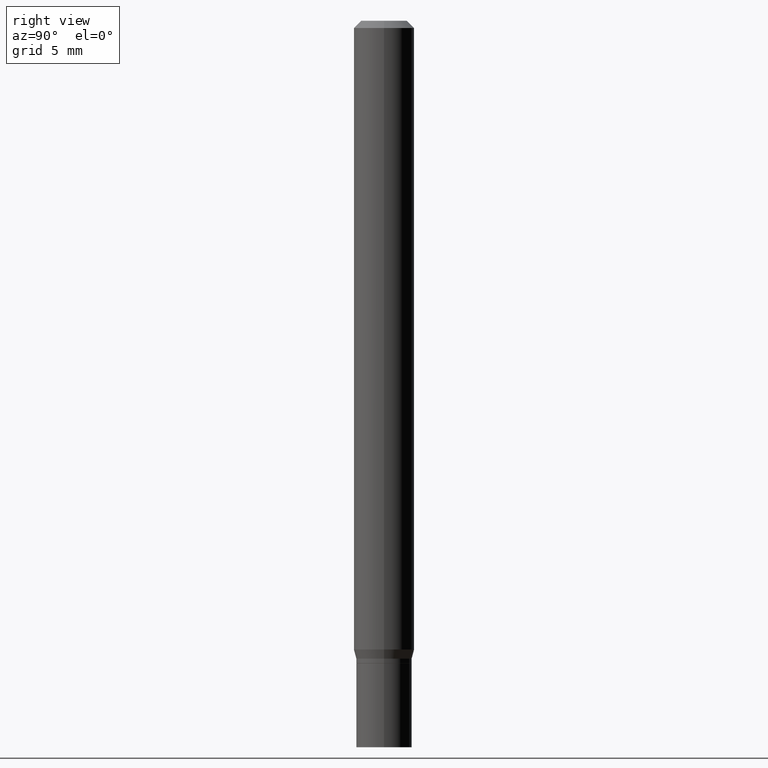
[diagram: clean part render]
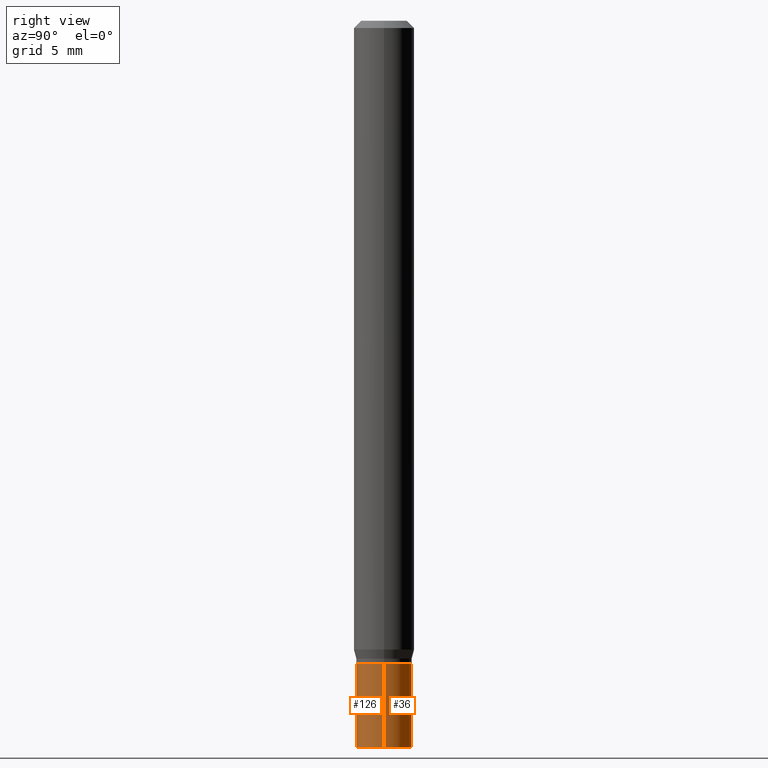
[diagram: same view with one multi-face feature highlighted, each face labeled with its STEP entity id]
A machine part, right view. The highlighted faces form ONE feature: a constant-radius fillet chain: 2 tangent blend faces with common blend radius 1.4605 mm. The faces share edges in the B-rep.
Their STEP definitions:
[1] entity #36 (Cylinder):
#15 = CARTESIAN_POINT ( 'NONE',  ( 3.245137105807676860E-29, -4.633195736644854276E-15, -1.327000000000000179 ) ) ;
#23 = AXIS2_PLACEMENT_3D ( 'NONE', #419, #428, #390 ) ;
#36 = ADVANCED_FACE ( 'NONE', ( #303 ), #276, .T. ) ;
#39 = VERTEX_POINT ( 'NONE', #201 ) ;
#45 = VECTOR ( 'NONE', #52, 39.37007874015748143 ) ;
#52 = DIRECTION ( 'NONE',  ( -2.445468806185136877E-29, 3.491481338843145188E-15, 1.000000000000000000 ) ) ;
#53 = DIRECTION ( 'NONE',  ( -2.445468806185136597E-29, 3.491481338843145583E-15, 1.000000000000000000 ) ) ;
#54 = CARTESIAN_POINT ( 'NONE',  ( 0.05750000000000000250, -4.015203539669603161E-16, 2.803801646082662941E-30 ) ) ;
#86 = ORIENTED_EDGE ( 'NONE', *, *, #397, .F. ) ;
#97 = EDGE_LOOP ( 'NONE', ( #400, #374, #86, #282 ) ) ;
#98 = LINE ( 'NONE', #272, #45 ) ;
#107 = CIRCLE ( 'NONE', #444, 0.05750000000000000250 ) ;
#110 = CARTESIAN_POINT ( 'NONE',  ( 3.668203209277704895E-29, -5.237222008264718177E-15, -1.500000000000000222 ) ) ;
#111 = VERTEX_POINT ( 'NONE', #255 ) ;
#139 = EDGE_CURVE ( 'NONE', #235, #111, #151, .T. ) ;
#151 = CIRCLE ( 'NONE', #361, 0.05750000000000000250 ) ;
#153 = CARTESIAN_POINT ( 'NONE',  ( 0.05750000000000000250, -5.638742362231678986E-15, -1.500000000000000222 ) ) ;
#161 = VECTOR ( 'NONE', #329, 39.37007874015748143 ) ;
#183 = LINE ( 'NONE', #54, #161 ) ;
#201 = CARTESIAN_POINT ( 'NONE',  ( 0.05750000000000000250, -5.034716090611815085E-15, -1.327000000000000179 ) ) ;
#221 = DIRECTION ( 'NONE',  ( 1.000000000000000000, -6.982962677686273810E-15, 0.000000000000000000 ) ) ;
#235 = VERTEX_POINT ( 'NONE', #153 ) ;
#255 = CARTESIAN_POINT ( 'NONE',  ( -0.05750000000000000250, -4.526646799392727862E-15, -1.500000000000000222 ) ) ;
#272 = CARTESIAN_POINT ( 'NONE',  ( -0.05750000000000000250, 4.085620730620576246E-16, -2.828387676896570712E-30 ) ) ;
#276 = CYLINDRICAL_SURFACE ( 'NONE', #23, 0.05750000000000000250 ) ;
#277 = EDGE_CURVE ( 'NONE', #111, #378, #98, .T. ) ;
#282 = ORIENTED_EDGE ( 'NONE', *, *, #384, .F. ) ;
#297 = DIRECTION ( 'NONE',  ( -2.445468806185136597E-29, 3.491481338843145583E-15, 1.000000000000000000 ) ) ;
#303 = FACE_OUTER_BOUND ( 'NONE', #97, .T. ) ;
#329 = DIRECTION ( 'NONE',  ( -2.445468806185136877E-29, 3.491481338843145188E-15, 1.000000000000000000 ) ) ;
#361 = AXIS2_PLACEMENT_3D ( 'NONE', #110, #53, #221 ) ;
#369 = CARTESIAN_POINT ( 'NONE',  ( -0.05750000000000000250, -4.526646799392727862E-15, -1.327000000000000179 ) ) ;
#374 = ORIENTED_EDGE ( 'NONE', *, *, #277, .T. ) ;
#378 = VERTEX_POINT ( 'NONE', #369 ) ;
#384 = EDGE_CURVE ( 'NONE', #235, #39, #183, .T. ) ;
#390 = DIRECTION ( 'NONE',  ( 1.000000000000000000, -6.982962677686265922E-15, 4.876176775795935232E-29 ) ) ;
#397 = EDGE_CURVE ( 'NONE', #39, #378, #107, .T. ) ;
#400 = ORIENTED_EDGE ( 'NONE', *, *, #139, .T. ) ;
#419 = CARTESIAN_POINT ( 'NONE',  ( 0.000000000000000000, 0.000000000000000000, 0.000000000000000000 ) ) ;
#428 = DIRECTION ( 'NONE',  ( -2.445468806185136597E-29, 3.491481338843145583E-15, 1.000000000000000000 ) ) ;
#444 = AXIS2_PLACEMENT_3D ( 'NONE', #15, #297, #448 ) ;
#448 = DIRECTION ( 'NONE',  ( 1.000000000000000000, -6.982962677686273810E-15, 0.000000000000000000 ) ) ;
[2] entity #126 (Cylinder):
#6 = DIRECTION ( 'NONE',  ( -2.445468806185136597E-29, 3.491481338843145583E-15, 1.000000000000000000 ) ) ;
#10 = AXIS2_PLACEMENT_3D ( 'NONE', #328, #406, #298 ) ;
#12 = CARTESIAN_POINT ( 'NONE',  ( 3.245137105807676860E-29, -4.633195736644854276E-15, -1.327000000000000179 ) ) ;
#19 = CIRCLE ( 'NONE', #246, 0.05750000000000000250 ) ;
#39 = VERTEX_POINT ( 'NONE', #201 ) ;
#45 = VECTOR ( 'NONE', #52, 39.37007874015748143 ) ;
#52 = DIRECTION ( 'NONE',  ( -2.445468806185136877E-29, 3.491481338843145188E-15, 1.000000000000000000 ) ) ;
#54 = CARTESIAN_POINT ( 'NONE',  ( 0.05750000000000000250, -4.015203539669603161E-16, 2.803801646082662941E-30 ) ) ;
#98 = LINE ( 'NONE', #272, #45 ) ;
#111 = VERTEX_POINT ( 'NONE', #255 ) ;
#126 = ADVANCED_FACE ( 'NONE', ( #267 ), #148, .T. ) ;
#135 = ORIENTED_EDGE ( 'NONE', *, *, #165, .F. ) ;
#143 = CIRCLE ( 'NONE', #220, 0.05750000000000000250 ) ;
#146 = DIRECTION ( 'NONE',  ( -2.445468806185136597E-29, 3.491481338843145583E-15, 1.000000000000000000 ) ) ;
#148 = CYLINDRICAL_SURFACE ( 'NONE', #10, 0.05750000000000000250 ) ;
#153 = CARTESIAN_POINT ( 'NONE',  ( 0.05750000000000000250, -5.638742362231678986E-15, -1.500000000000000222 ) ) ;
#161 = VECTOR ( 'NONE', #329, 39.37007874015748143 ) ;
#165 = EDGE_CURVE ( 'NONE', #378, #39, #19, .T. ) ;
#183 = LINE ( 'NONE', #54, #161 ) ;
#201 = CARTESIAN_POINT ( 'NONE',  ( 0.05750000000000000250, -5.034716090611815085E-15, -1.327000000000000179 ) ) ;
#220 = AXIS2_PLACEMENT_3D ( 'NONE', #359, #6, #254 ) ;
#226 = ORIENTED_EDGE ( 'NONE', *, *, #446, .T. ) ;
#235 = VERTEX_POINT ( 'NONE', #153 ) ;
#246 = AXIS2_PLACEMENT_3D ( 'NONE', #12, #146, #447 ) ;
#254 = DIRECTION ( 'NONE',  ( 1.000000000000000000, -6.982962677686273810E-15, 0.000000000000000000 ) ) ;
#255 = CARTESIAN_POINT ( 'NONE',  ( -0.05750000000000000250, -4.526646799392727862E-15, -1.500000000000000222 ) ) ;
#267 = FACE_OUTER_BOUND ( 'NONE', #462, .T. ) ;
#272 = CARTESIAN_POINT ( 'NONE',  ( -0.05750000000000000250, 4.085620730620576246E-16, -2.828387676896570712E-30 ) ) ;
#277 = EDGE_CURVE ( 'NONE', #111, #378, #98, .T. ) ;
#298 = DIRECTION ( 'NONE',  ( 1.000000000000000000, -6.982962677686265922E-15, 4.876176775795935232E-29 ) ) ;
#328 = CARTESIAN_POINT ( 'NONE',  ( 0.000000000000000000, 0.000000000000000000, 0.000000000000000000 ) ) ;
#329 = DIRECTION ( 'NONE',  ( -2.445468806185136877E-29, 3.491481338843145188E-15, 1.000000000000000000 ) ) ;
#359 = CARTESIAN_POINT ( 'NONE',  ( 3.668203209277704895E-29, -5.237222008264718177E-15, -1.500000000000000222 ) ) ;
#369 = CARTESIAN_POINT ( 'NONE',  ( -0.05750000000000000250, -4.526646799392727862E-15, -1.327000000000000179 ) ) ;
#371 = ORIENTED_EDGE ( 'NONE', *, *, #277, .F. ) ;
#378 = VERTEX_POINT ( 'NONE', #369 ) ;
#384 = EDGE_CURVE ( 'NONE', #235, #39, #183, .T. ) ;
#406 = DIRECTION ( 'NONE',  ( -2.445468806185136597E-29, 3.491481338843145583E-15, 1.000000000000000000 ) ) ;
#446 = EDGE_CURVE ( 'NONE', #111, #235, #143, .T. ) ;
#447 = DIRECTION ( 'NONE',  ( 1.000000000000000000, -6.982962677686273810E-15, 0.000000000000000000 ) ) ;
#452 = ORIENTED_EDGE ( 'NONE', *, *, #384, .T. ) ;
#462 = EDGE_LOOP ( 'NONE', ( #371, #226, #452, #135 ) ) ;